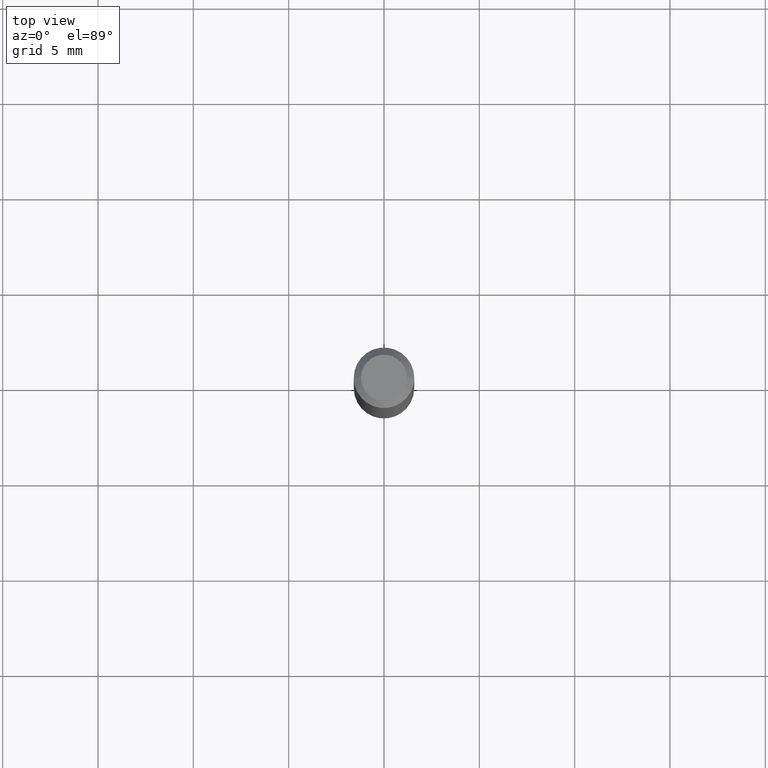
[diagram: clean part render]
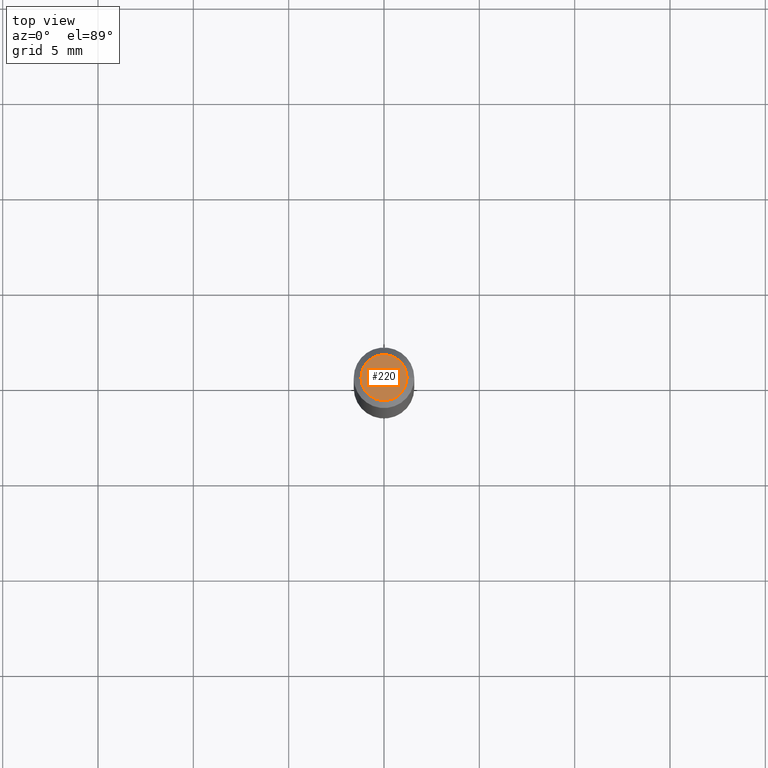
[diagram: same view with one face highlighted and labeled with its STEP entity id]
A machine part, top view. The second image highlights one B-rep face of the part: STEP entity #220.
In plain terms, the highlighted planar face has unit normal (0, -0, -1).
Its self-contained STEP definition (entity closure, byte-faithful):
#39 = CARTESIAN_POINT ( 'NONE',  ( -0.04749999999999999362, 3.578768372314182896E-16, -1.582279719538970160E-15 ) ) ;
#75 = DIRECTION ( 'NONE',  ( -2.445468806185136597E-29, 3.491481338843145583E-15, 1.000000000000000000 ) ) ;
#80 = ORIENTED_EDGE ( 'NONE', *, *, #431, .T. ) ;
#81 = DIRECTION ( 'NONE',  ( 1.000000000000000000, -6.982962677686267499E-15, 5.108144071313017768E-29 ) ) ;
#84 = AXIS2_PLACEMENT_3D ( 'NONE', #227, #189, #360 ) ;
#92 = AXIS2_PLACEMENT_3D ( 'NONE', #243, #343, #452 ) ;
#135 = VERTEX_POINT ( 'NONE', #39 ) ;
#189 = DIRECTION ( 'NONE',  ( 2.438088387897960049E-29, -3.491481338843145188E-15, -1.000000000000000000 ) ) ;
#197 = CIRCLE ( 'NONE', #92, 0.04749999999999999362 ) ;
#204 = ORIENTED_EDGE ( 'NONE', *, *, #214, .T. ) ;
#214 = EDGE_CURVE ( 'NONE', #458, #135, #245, .T. ) ;
#216 = PLANE ( 'NONE',  #84 ) ;
#220 = ADVANCED_FACE ( 'NONE', ( #365 ), #216, .F. ) ;
#227 = CARTESIAN_POINT ( 'NONE',  ( 3.316907271900976096E-16, 0.04749999999999999362, -9.569852233645332438E-16 ) ) ;
#238 = EDGE_LOOP ( 'NONE', ( #80, #204 ) ) ;
#243 = CARTESIAN_POINT ( 'NONE',  ( 3.869415696791911762E-44, -5.524500113600271674E-30, -1.582279719538967596E-15 ) ) ;
#245 = CIRCLE ( 'NONE', #271, 0.04749999999999999362 ) ;
#271 = AXIS2_PLACEMENT_3D ( 'NONE', #398, #75, #81 ) ;
#303 = CARTESIAN_POINT ( 'NONE',  ( 0.04749999999999999362, -4.035134999187605740E-16, -1.582279719538965032E-15 ) ) ;
#343 = DIRECTION ( 'NONE',  ( -2.445468806185136597E-29, 3.491481338843145583E-15, 1.000000000000000000 ) ) ;
#360 = DIRECTION ( 'NONE',  ( -1.000000000000000000, 6.982962677686265922E-15, -4.876176775795935793E-29 ) ) ;
#365 = FACE_OUTER_BOUND ( 'NONE', #238, .T. ) ;
#398 = CARTESIAN_POINT ( 'NONE',  ( 3.869415696791911762E-44, -5.524500113600271674E-30, -1.582279719538967596E-15 ) ) ;
#431 = EDGE_CURVE ( 'NONE', #135, #458, #197, .T. ) ;
#452 = DIRECTION ( 'NONE',  ( 1.000000000000000000, -6.982962677686267499E-15, 5.108144071313017768E-29 ) ) ;
#458 = VERTEX_POINT ( 'NONE', #303 ) ;